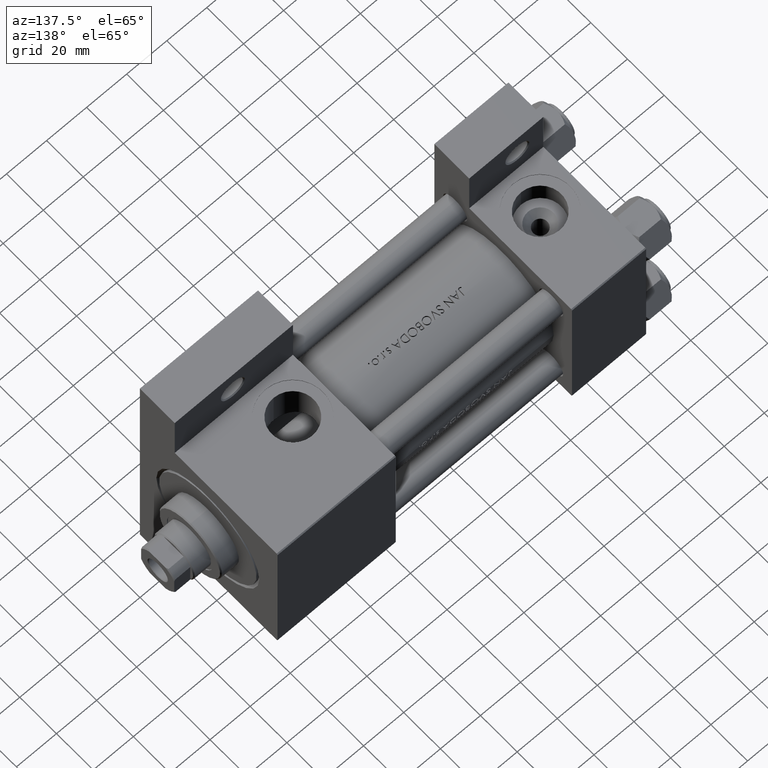
[diagram: clean part render]
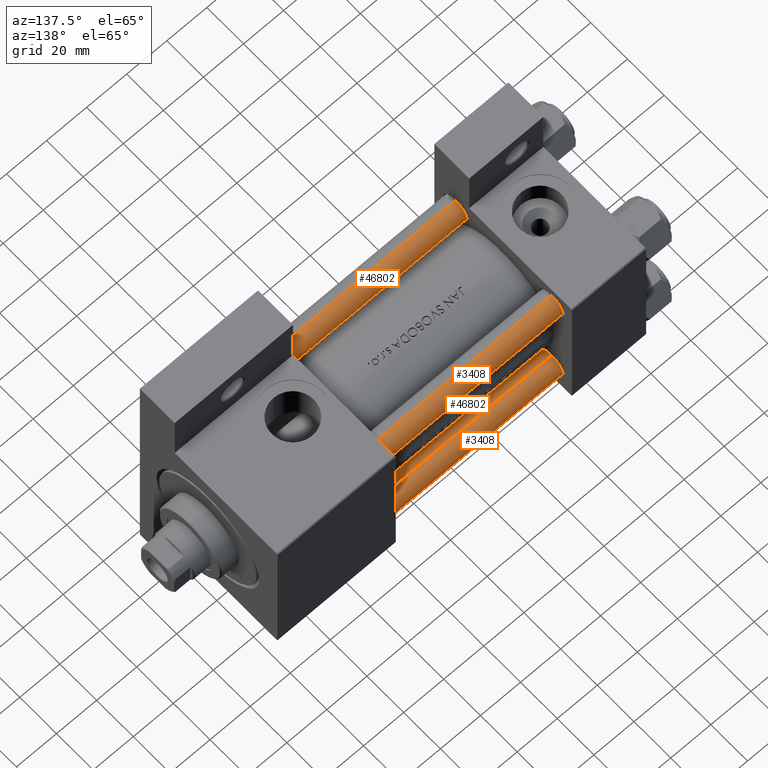
[diagram: same view with one multi-face feature highlighted, each face labeled with its STEP entity id]
A machine part, auxiliary view. The highlighted faces form ONE feature: a constant-radius fillet chain: 4 tangent blend faces with common blend radius 6 mm. The faces share edges in the B-rep.
Their STEP definitions:
[1] entity #3408 (Cylinder):
#57 = DIRECTION ( 'NONE',  ( -1.000000000000000000, 0.000000000000000000, 0.000000000000000000 ) ) ;
#3408 = ADVANCED_FACE ( 'NONE', ( #26486 ), #41905, .T. ) ;
#3689 = DIRECTION ( 'NONE',  ( -0.000000000000000000, -0.000000000000000000, -1.000000000000000000 ) ) ;
#3807 = DIRECTION ( 'NONE',  ( 0.000000000000000000, 0.000000000000000000, -1.000000000000000000 ) ) ;
#4020 = LINE ( 'NONE', #42119, #8402 ) ;
#5046 = EDGE_CURVE ( 'NONE', #8846, #47045, #35865, .T. ) ;
#5176 = CIRCLE ( 'NONE', #43241, 6.000000000000000888 ) ;
#6010 = VECTOR ( 'NONE', #3689, 1000.000000000000000 ) ;
#7138 = CARTESIAN_POINT ( 'NONE',  ( -6.000000000000000888, 0.000000000000000000, 0.5000000000000281997 ) ) ;
#8165 = CARTESIAN_POINT ( 'NONE',  ( -6.000000000000000888, 0.000000000000000000, 153.5000000000000000 ) ) ;
#8402 = VECTOR ( 'NONE', #11256, 1000.000000000000000 ) ;
#8846 = VERTEX_POINT ( 'NONE', #17951 ) ;
#11047 = DIRECTION ( 'NONE',  ( -0.000000000000000000, -0.000000000000000000, -1.000000000000000000 ) ) ;
#11256 = DIRECTION ( 'NONE',  ( -0.000000000000000000, -0.000000000000000000, -1.000000000000000000 ) ) ;
#14289 = ORIENTED_EDGE ( 'NONE', *, *, #23659, .T. ) ;
#14297 = AXIS2_PLACEMENT_3D ( 'NONE', #14368, #25819, #45211 ) ;
#14368 = CARTESIAN_POINT ( 'NONE',  ( 0.000000000000000000, 0.000000000000000000, 0.5000000000000281997 ) ) ;
#15032 = CARTESIAN_POINT ( 'NONE',  ( 0.000000000000000000, 0.000000000000000000, 154.0000000000000000 ) ) ;
#17437 = EDGE_LOOP ( 'NONE', ( #22684, #14289, #24432, #30784 ) ) ;
#17951 = CARTESIAN_POINT ( 'NONE',  ( 6.000000000000000888, 7.347880794884120722E-16, 0.5000000000000281997 ) ) ;
#19547 = EDGE_CURVE ( 'NONE', #31634, #48678, #5176, .T. ) ;
#20001 = CARTESIAN_POINT ( 'NONE',  ( 0.000000000000000000, 0.000000000000000000, 153.5000000000000000 ) ) ;
#21641 = CARTESIAN_POINT ( 'NONE',  ( 6.000000000000000888, 7.347880794884120722E-16, 153.5000000000000000 ) ) ;
#22684 = ORIENTED_EDGE ( 'NONE', *, *, #19547, .T. ) ;
#22699 = EDGE_CURVE ( 'NONE', #31634, #47045, #42033, .T. ) ;
#23659 = EDGE_CURVE ( 'NONE', #48678, #8846, #4020, .T. ) ;
#24432 = ORIENTED_EDGE ( 'NONE', *, *, #5046, .T. ) ;
#25819 = DIRECTION ( 'NONE',  ( -0.000000000000000000, -0.000000000000000000, 1.000000000000000000 ) ) ;
#26486 = FACE_OUTER_BOUND ( 'NONE', #17437, .T. ) ;
#26608 = CARTESIAN_POINT ( 'NONE',  ( -6.000000000000000888, 0.000000000000000000, 154.0000000000000000 ) ) ;
#29654 = AXIS2_PLACEMENT_3D ( 'NONE', #15032, #11047, #57 ) ;
#30784 = ORIENTED_EDGE ( 'NONE', *, *, #22699, .F. ) ;
#31634 = VERTEX_POINT ( 'NONE', #8165 ) ;
#35865 = CIRCLE ( 'NONE', #14297, 6.000000000000000888 ) ;
#38903 = DIRECTION ( 'NONE',  ( 1.000000000000000000, 0.000000000000000000, 0.000000000000000000 ) ) ;
#41905 = CYLINDRICAL_SURFACE ( 'NONE', #29654, 6.000000000000000888 ) ;
#42033 = LINE ( 'NONE', #26608, #6010 ) ;
#42119 = CARTESIAN_POINT ( 'NONE',  ( 6.000000000000000888, 7.347880794884120722E-16, 154.0000000000000000 ) ) ;
#43241 = AXIS2_PLACEMENT_3D ( 'NONE', #20001, #3807, #38903 ) ;
#45211 = DIRECTION ( 'NONE',  ( 1.000000000000000000, 0.000000000000000000, 0.000000000000000000 ) ) ;
#47045 = VERTEX_POINT ( 'NONE', #7138 ) ;
#48678 = VERTEX_POINT ( 'NONE', #21641 ) ;
[2] entity #46802 (Cylinder):
#59 = DIRECTION ( 'NONE',  ( -0.000000000000000000, -0.000000000000000000, 1.000000000000000000 ) ) ;
#2014 = CARTESIAN_POINT ( 'NONE',  ( 0.000000000000000000, 0.000000000000000000, 153.5000000000000000 ) ) ;
#3689 = DIRECTION ( 'NONE',  ( -0.000000000000000000, -0.000000000000000000, -1.000000000000000000 ) ) ;
#4020 = LINE ( 'NONE', #42119, #8402 ) ;
#5691 = EDGE_LOOP ( 'NONE', ( #27650, #13411, #39701, #21569 ) ) ;
#6010 = VECTOR ( 'NONE', #3689, 1000.000000000000000 ) ;
#6714 = CYLINDRICAL_SURFACE ( 'NONE', #29381, 6.000000000000000888 ) ;
#7138 = CARTESIAN_POINT ( 'NONE',  ( -6.000000000000000888, 0.000000000000000000, 0.5000000000000281997 ) ) ;
#7447 = FACE_OUTER_BOUND ( 'NONE', #5691, .T. ) ;
#8165 = CARTESIAN_POINT ( 'NONE',  ( -6.000000000000000888, 0.000000000000000000, 153.5000000000000000 ) ) ;
#8402 = VECTOR ( 'NONE', #11256, 1000.000000000000000 ) ;
#8846 = VERTEX_POINT ( 'NONE', #17951 ) ;
#9011 = DIRECTION ( 'NONE',  ( 0.000000000000000000, 0.000000000000000000, -1.000000000000000000 ) ) ;
#10705 = CARTESIAN_POINT ( 'NONE',  ( 0.000000000000000000, 0.000000000000000000, 154.0000000000000000 ) ) ;
#11256 = DIRECTION ( 'NONE',  ( -0.000000000000000000, -0.000000000000000000, -1.000000000000000000 ) ) ;
#12194 = CIRCLE ( 'NONE', #41586, 6.000000000000000888 ) ;
#13411 = ORIENTED_EDGE ( 'NONE', *, *, #25518, .T. ) ;
#14362 = EDGE_CURVE ( 'NONE', #47045, #8846, #12194, .T. ) ;
#15778 = DIRECTION ( 'NONE',  ( 1.000000000000000000, 0.000000000000000000, 0.000000000000000000 ) ) ;
#17951 = CARTESIAN_POINT ( 'NONE',  ( 6.000000000000000888, 7.347880794884120722E-16, 0.5000000000000281997 ) ) ;
#19510 = CARTESIAN_POINT ( 'NONE',  ( 0.000000000000000000, 0.000000000000000000, 0.5000000000000281997 ) ) ;
#20982 = DIRECTION ( 'NONE',  ( 1.000000000000000000, 0.000000000000000000, 0.000000000000000000 ) ) ;
#21569 = ORIENTED_EDGE ( 'NONE', *, *, #14362, .T. ) ;
#21641 = CARTESIAN_POINT ( 'NONE',  ( 6.000000000000000888, 7.347880794884120722E-16, 153.5000000000000000 ) ) ;
#22699 = EDGE_CURVE ( 'NONE', #31634, #47045, #42033, .T. ) ;
#23659 = EDGE_CURVE ( 'NONE', #48678, #8846, #4020, .T. ) ;
#25518 = EDGE_CURVE ( 'NONE', #48678, #31634, #37907, .T. ) ;
#26608 = CARTESIAN_POINT ( 'NONE',  ( -6.000000000000000888, 0.000000000000000000, 154.0000000000000000 ) ) ;
#27650 = ORIENTED_EDGE ( 'NONE', *, *, #23659, .F. ) ;
#29146 = AXIS2_PLACEMENT_3D ( 'NONE', #2014, #9011, #20982 ) ;
#29381 = AXIS2_PLACEMENT_3D ( 'NONE', #10705, #33352, #33108 ) ;
#31634 = VERTEX_POINT ( 'NONE', #8165 ) ;
#33108 = DIRECTION ( 'NONE',  ( -1.000000000000000000, 0.000000000000000000, 0.000000000000000000 ) ) ;
#33352 = DIRECTION ( 'NONE',  ( -0.000000000000000000, -0.000000000000000000, -1.000000000000000000 ) ) ;
#37907 = CIRCLE ( 'NONE', #29146, 6.000000000000000888 ) ;
#39701 = ORIENTED_EDGE ( 'NONE', *, *, #22699, .T. ) ;
#41586 = AXIS2_PLACEMENT_3D ( 'NONE', #19510, #59, #15778 ) ;
#42033 = LINE ( 'NONE', #26608, #6010 ) ;
#42119 = CARTESIAN_POINT ( 'NONE',  ( 6.000000000000000888, 7.347880794884120722E-16, 154.0000000000000000 ) ) ;
#46802 = ADVANCED_FACE ( 'NONE', ( #7447 ), #6714, .T. ) ;
#47045 = VERTEX_POINT ( 'NONE', #7138 ) ;
#48678 = VERTEX_POINT ( 'NONE', #21641 ) ;
[3] entity #3408 (Cylinder):
#57 = DIRECTION ( 'NONE',  ( -1.000000000000000000, 0.000000000000000000, 0.000000000000000000 ) ) ;
#3408 = ADVANCED_FACE ( 'NONE', ( #26486 ), #41905, .T. ) ;
#3689 = DIRECTION ( 'NONE',  ( -0.000000000000000000, -0.000000000000000000, -1.000000000000000000 ) ) ;
#3807 = DIRECTION ( 'NONE',  ( 0.000000000000000000, 0.000000000000000000, -1.000000000000000000 ) ) ;
#4020 = LINE ( 'NONE', #42119, #8402 ) ;
#5046 = EDGE_CURVE ( 'NONE', #8846, #47045, #35865, .T. ) ;
#5176 = CIRCLE ( 'NONE', #43241, 6.000000000000000888 ) ;
#6010 = VECTOR ( 'NONE', #3689, 1000.000000000000000 ) ;
#7138 = CARTESIAN_POINT ( 'NONE',  ( -6.000000000000000888, 0.000000000000000000, 0.5000000000000281997 ) ) ;
#8165 = CARTESIAN_POINT ( 'NONE',  ( -6.000000000000000888, 0.000000000000000000, 153.5000000000000000 ) ) ;
#8402 = VECTOR ( 'NONE', #11256, 1000.000000000000000 ) ;
#8846 = VERTEX_POINT ( 'NONE', #17951 ) ;
#11047 = DIRECTION ( 'NONE',  ( -0.000000000000000000, -0.000000000000000000, -1.000000000000000000 ) ) ;
#11256 = DIRECTION ( 'NONE',  ( -0.000000000000000000, -0.000000000000000000, -1.000000000000000000 ) ) ;
#14289 = ORIENTED_EDGE ( 'NONE', *, *, #23659, .T. ) ;
#14297 = AXIS2_PLACEMENT_3D ( 'NONE', #14368, #25819, #45211 ) ;
#14368 = CARTESIAN_POINT ( 'NONE',  ( 0.000000000000000000, 0.000000000000000000, 0.5000000000000281997 ) ) ;
#15032 = CARTESIAN_POINT ( 'NONE',  ( 0.000000000000000000, 0.000000000000000000, 154.0000000000000000 ) ) ;
#17437 = EDGE_LOOP ( 'NONE', ( #22684, #14289, #24432, #30784 ) ) ;
#17951 = CARTESIAN_POINT ( 'NONE',  ( 6.000000000000000888, 7.347880794884120722E-16, 0.5000000000000281997 ) ) ;
#19547 = EDGE_CURVE ( 'NONE', #31634, #48678, #5176, .T. ) ;
#20001 = CARTESIAN_POINT ( 'NONE',  ( 0.000000000000000000, 0.000000000000000000, 153.5000000000000000 ) ) ;
#21641 = CARTESIAN_POINT ( 'NONE',  ( 6.000000000000000888, 7.347880794884120722E-16, 153.5000000000000000 ) ) ;
#22684 = ORIENTED_EDGE ( 'NONE', *, *, #19547, .T. ) ;
#22699 = EDGE_CURVE ( 'NONE', #31634, #47045, #42033, .T. ) ;
#23659 = EDGE_CURVE ( 'NONE', #48678, #8846, #4020, .T. ) ;
#24432 = ORIENTED_EDGE ( 'NONE', *, *, #5046, .T. ) ;
#25819 = DIRECTION ( 'NONE',  ( -0.000000000000000000, -0.000000000000000000, 1.000000000000000000 ) ) ;
#26486 = FACE_OUTER_BOUND ( 'NONE', #17437, .T. ) ;
#26608 = CARTESIAN_POINT ( 'NONE',  ( -6.000000000000000888, 0.000000000000000000, 154.0000000000000000 ) ) ;
#29654 = AXIS2_PLACEMENT_3D ( 'NONE', #15032, #11047, #57 ) ;
#30784 = ORIENTED_EDGE ( 'NONE', *, *, #22699, .F. ) ;
#31634 = VERTEX_POINT ( 'NONE', #8165 ) ;
#35865 = CIRCLE ( 'NONE', #14297, 6.000000000000000888 ) ;
#38903 = DIRECTION ( 'NONE',  ( 1.000000000000000000, 0.000000000000000000, 0.000000000000000000 ) ) ;
#41905 = CYLINDRICAL_SURFACE ( 'NONE', #29654, 6.000000000000000888 ) ;
#42033 = LINE ( 'NONE', #26608, #6010 ) ;
#42119 = CARTESIAN_POINT ( 'NONE',  ( 6.000000000000000888, 7.347880794884120722E-16, 154.0000000000000000 ) ) ;
#43241 = AXIS2_PLACEMENT_3D ( 'NONE', #20001, #3807, #38903 ) ;
#45211 = DIRECTION ( 'NONE',  ( 1.000000000000000000, 0.000000000000000000, 0.000000000000000000 ) ) ;
#47045 = VERTEX_POINT ( 'NONE', #7138 ) ;
#48678 = VERTEX_POINT ( 'NONE', #21641 ) ;
[4] entity #46802 (Cylinder):
#59 = DIRECTION ( 'NONE',  ( -0.000000000000000000, -0.000000000000000000, 1.000000000000000000 ) ) ;
#2014 = CARTESIAN_POINT ( 'NONE',  ( 0.000000000000000000, 0.000000000000000000, 153.5000000000000000 ) ) ;
#3689 = DIRECTION ( 'NONE',  ( -0.000000000000000000, -0.000000000000000000, -1.000000000000000000 ) ) ;
#4020 = LINE ( 'NONE', #42119, #8402 ) ;
#5691 = EDGE_LOOP ( 'NONE', ( #27650, #13411, #39701, #21569 ) ) ;
#6010 = VECTOR ( 'NONE', #3689, 1000.000000000000000 ) ;
#6714 = CYLINDRICAL_SURFACE ( 'NONE', #29381, 6.000000000000000888 ) ;
#7138 = CARTESIAN_POINT ( 'NONE',  ( -6.000000000000000888, 0.000000000000000000, 0.5000000000000281997 ) ) ;
#7447 = FACE_OUTER_BOUND ( 'NONE', #5691, .T. ) ;
#8165 = CARTESIAN_POINT ( 'NONE',  ( -6.000000000000000888, 0.000000000000000000, 153.5000000000000000 ) ) ;
#8402 = VECTOR ( 'NONE', #11256, 1000.000000000000000 ) ;
#8846 = VERTEX_POINT ( 'NONE', #17951 ) ;
#9011 = DIRECTION ( 'NONE',  ( 0.000000000000000000, 0.000000000000000000, -1.000000000000000000 ) ) ;
#10705 = CARTESIAN_POINT ( 'NONE',  ( 0.000000000000000000, 0.000000000000000000, 154.0000000000000000 ) ) ;
#11256 = DIRECTION ( 'NONE',  ( -0.000000000000000000, -0.000000000000000000, -1.000000000000000000 ) ) ;
#12194 = CIRCLE ( 'NONE', #41586, 6.000000000000000888 ) ;
#13411 = ORIENTED_EDGE ( 'NONE', *, *, #25518, .T. ) ;
#14362 = EDGE_CURVE ( 'NONE', #47045, #8846, #12194, .T. ) ;
#15778 = DIRECTION ( 'NONE',  ( 1.000000000000000000, 0.000000000000000000, 0.000000000000000000 ) ) ;
#17951 = CARTESIAN_POINT ( 'NONE',  ( 6.000000000000000888, 7.347880794884120722E-16, 0.5000000000000281997 ) ) ;
#19510 = CARTESIAN_POINT ( 'NONE',  ( 0.000000000000000000, 0.000000000000000000, 0.5000000000000281997 ) ) ;
#20982 = DIRECTION ( 'NONE',  ( 1.000000000000000000, 0.000000000000000000, 0.000000000000000000 ) ) ;
#21569 = ORIENTED_EDGE ( 'NONE', *, *, #14362, .T. ) ;
#21641 = CARTESIAN_POINT ( 'NONE',  ( 6.000000000000000888, 7.347880794884120722E-16, 153.5000000000000000 ) ) ;
#22699 = EDGE_CURVE ( 'NONE', #31634, #47045, #42033, .T. ) ;
#23659 = EDGE_CURVE ( 'NONE', #48678, #8846, #4020, .T. ) ;
#25518 = EDGE_CURVE ( 'NONE', #48678, #31634, #37907, .T. ) ;
#26608 = CARTESIAN_POINT ( 'NONE',  ( -6.000000000000000888, 0.000000000000000000, 154.0000000000000000 ) ) ;
#27650 = ORIENTED_EDGE ( 'NONE', *, *, #23659, .F. ) ;
#29146 = AXIS2_PLACEMENT_3D ( 'NONE', #2014, #9011, #20982 ) ;
#29381 = AXIS2_PLACEMENT_3D ( 'NONE', #10705, #33352, #33108 ) ;
#31634 = VERTEX_POINT ( 'NONE', #8165 ) ;
#33108 = DIRECTION ( 'NONE',  ( -1.000000000000000000, 0.000000000000000000, 0.000000000000000000 ) ) ;
#33352 = DIRECTION ( 'NONE',  ( -0.000000000000000000, -0.000000000000000000, -1.000000000000000000 ) ) ;
#37907 = CIRCLE ( 'NONE', #29146, 6.000000000000000888 ) ;
#39701 = ORIENTED_EDGE ( 'NONE', *, *, #22699, .T. ) ;
#41586 = AXIS2_PLACEMENT_3D ( 'NONE', #19510, #59, #15778 ) ;
#42033 = LINE ( 'NONE', #26608, #6010 ) ;
#42119 = CARTESIAN_POINT ( 'NONE',  ( 6.000000000000000888, 7.347880794884120722E-16, 154.0000000000000000 ) ) ;
#46802 = ADVANCED_FACE ( 'NONE', ( #7447 ), #6714, .T. ) ;
#47045 = VERTEX_POINT ( 'NONE', #7138 ) ;
#48678 = VERTEX_POINT ( 'NONE', #21641 ) ;